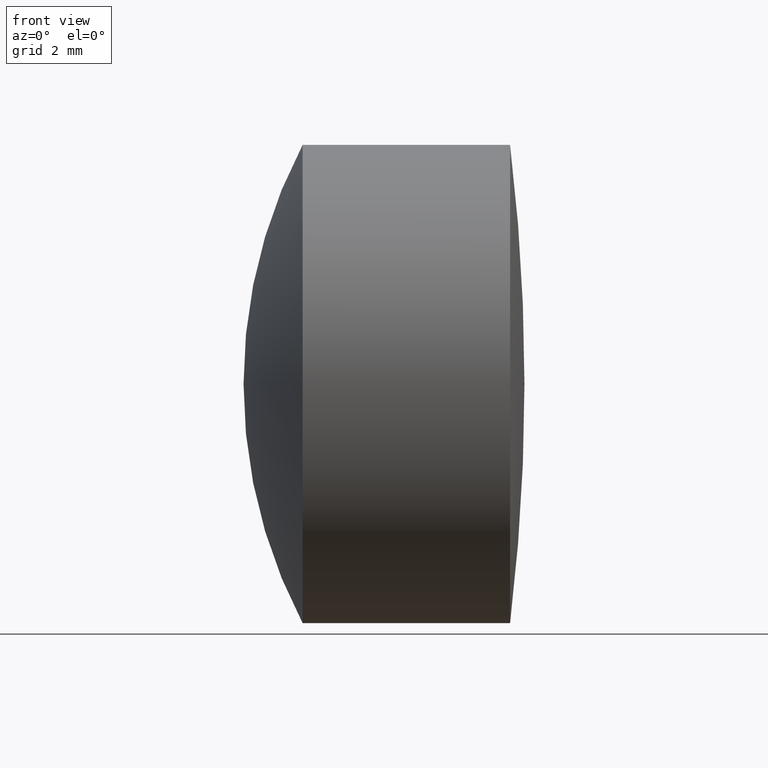
[diagram: clean part render]
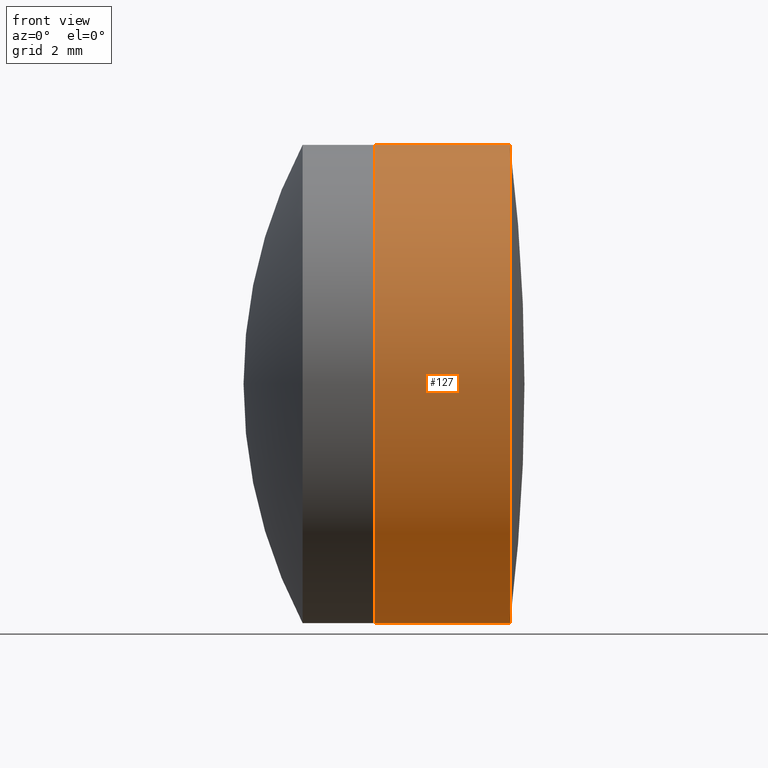
[diagram: same view with one face highlighted and labeled with its STEP entity id]
A machine part, front view. The second image highlights one B-rep face of the part: STEP entity #127.
In plain terms, the highlighted cylindrical surface (partial cylindrical patch) has radius 8 mm, axis along (-1, -0, -0).
Its self-contained STEP definition (entity closure, byte-faithful):
#7 = DIRECTION ( 'NONE',  ( 0.0000000000000000000, 0.0000000000000000000, 1.000000000000000000 ) ) ;
#9 = DIRECTION ( 'NONE',  ( -1.000000000000000000, -0.0000000000000000000, -0.0000000000000000000 ) ) ;
#11 = CARTESIAN_POINT ( 'NONE',  ( 16.48846299245593300, 0.0000000000000000000, 0.0000000000000000000 ) ) ;
#12 = LINE ( 'NONE', #283, #121 ) ;
#28 = CIRCLE ( 'NONE', #207, 7.999999999999992900 ) ;
#35 = EDGE_CURVE ( 'NONE', #153, #156, #230, .T. ) ;
#39 = ORIENTED_EDGE ( 'NONE', *, *, #179, .F. ) ;
#57 = CARTESIAN_POINT ( 'NONE',  ( 16.48846299245593300, 0.0000000000000000000, 8.000000000000000000 ) ) ;
#66 = ORIENTED_EDGE ( 'NONE', *, *, #324, .T. ) ;
#68 = DIRECTION ( 'NONE',  ( 0.0000000000000000000, 0.0000000000000000000, 1.000000000000000000 ) ) ;
#82 = CARTESIAN_POINT ( 'NONE',  ( 21.03539995463979300, 9.797174393178819700E-016, -7.999999999999992900 ) ) ;
#92 = CARTESIAN_POINT ( 'NONE',  ( 21.03539995463979300, 0.0000000000000000000, 0.0000000000000000000 ) ) ;
#104 = ORIENTED_EDGE ( 'NONE', *, *, #288, .F. ) ;
#121 = VECTOR ( 'NONE', #278, 1000.000000000000000 ) ;
#127 = ADVANCED_FACE ( 'NONE', ( #243 ), #183, .T. ) ;
#131 = VERTEX_POINT ( 'NONE', #314 ) ;
#153 = VERTEX_POINT ( 'NONE', #262 ) ;
#156 = VERTEX_POINT ( 'NONE', #57 ) ;
#179 = EDGE_CURVE ( 'NONE', #272, #131, #12, .T. ) ;
#183 = CYLINDRICAL_SURFACE ( 'NONE', #289, 7.999999999999996400 ) ;
#188 = AXIS2_PLACEMENT_3D ( 'NONE', #11, #9, #7 ) ;
#205 = CARTESIAN_POINT ( 'NONE',  ( -0.5519199926577972300, 0.0000000000000000000, 7.999999999999996400 ) ) ;
#207 = AXIS2_PLACEMENT_3D ( 'NONE', #92, #251, #68 ) ;
#230 = LINE ( 'NONE', #205, #260 ) ;
#243 = FACE_OUTER_BOUND ( 'NONE', #336, .T. ) ;
#251 = DIRECTION ( 'NONE',  ( -1.000000000000000000, -0.0000000000000000000, -0.0000000000000000000 ) ) ;
#253 = DIRECTION ( 'NONE',  ( -1.000000000000000000, -0.0000000000000000000, -0.0000000000000000000 ) ) ;
#256 = DIRECTION ( 'NONE',  ( 0.0000000000000000000, 0.0000000000000000000, 1.000000000000000000 ) ) ;
#260 = VECTOR ( 'NONE', #320, 1000.000000000000000 ) ;
#261 = CARTESIAN_POINT ( 'NONE',  ( -0.5519199926577972300, 0.0000000000000000000, 0.0000000000000000000 ) ) ;
#262 = CARTESIAN_POINT ( 'NONE',  ( 21.03539995463979300, 0.0000000000000000000, 7.999999999999992900 ) ) ;
#272 = VERTEX_POINT ( 'NONE', #82 ) ;
#278 = DIRECTION ( 'NONE',  ( -1.000000000000000000, -0.0000000000000000000, -0.0000000000000000000 ) ) ;
#283 = CARTESIAN_POINT ( 'NONE',  ( -0.5519199926577972300, 9.797174393178821700E-016, -7.999999999999996400 ) ) ;
#288 = EDGE_CURVE ( 'NONE', #131, #156, #300, .T. ) ;
#289 = AXIS2_PLACEMENT_3D ( 'NONE', #261, #253, #256 ) ;
#300 = CIRCLE ( 'NONE', #188, 8.000000000000000000 ) ;
#305 = ORIENTED_EDGE ( 'NONE', *, *, #35, .T. ) ;
#314 = CARTESIAN_POINT ( 'NONE',  ( 16.48846299245593300, 9.797174393178827600E-016, -8.000000000000000000 ) ) ;
#320 = DIRECTION ( 'NONE',  ( -1.000000000000000000, -0.0000000000000000000, -0.0000000000000000000 ) ) ;
#324 = EDGE_CURVE ( 'NONE', #272, #153, #28, .T. ) ;
#336 = EDGE_LOOP ( 'NONE', ( #39, #66, #305, #104 ) ) ;